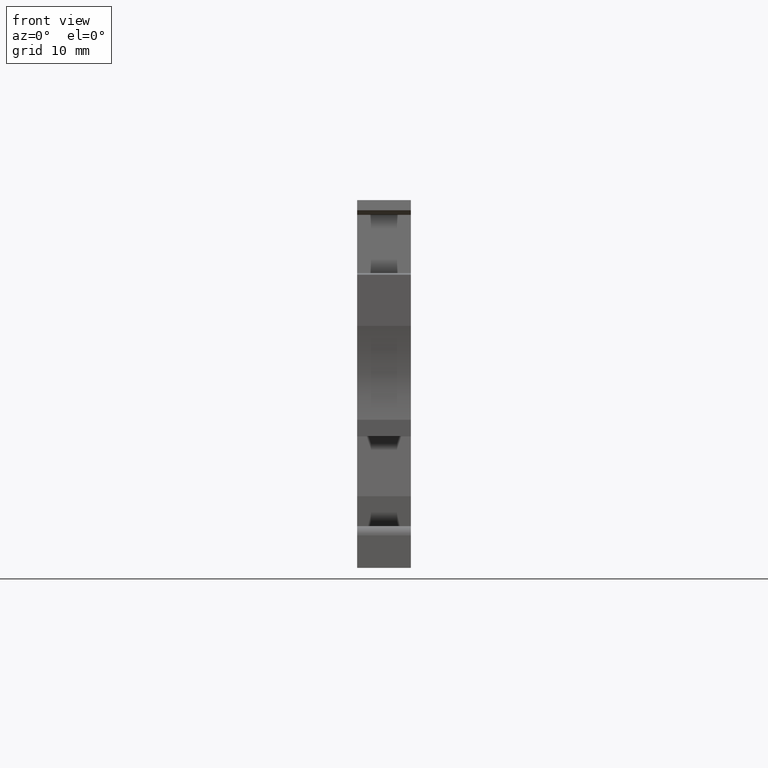
[diagram: clean part render]
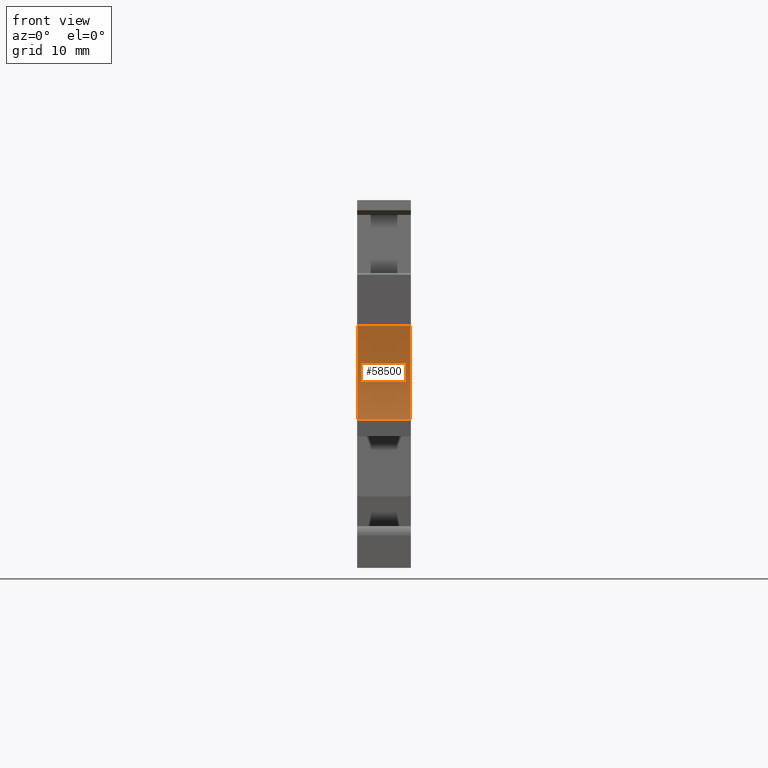
[diagram: same view with one face highlighted and labeled with its STEP entity id]
A machine part, front view. The second image highlights one B-rep face of the part: STEP entity #58500.
In plain terms, the highlighted cylindrical surface (partial cylindrical patch) has radius 15 mm, axis along (1, -0, -0).
Its self-contained STEP definition (entity closure, byte-faithful):
#16660=CARTESIAN_POINT('',(-22.3678327783245,-30.2000000000027,48.52));
#16670=VERTEX_POINT('',#16660);
#16700=CARTESIAN_POINT('',(-22.3678327783245,-30.2000000000027,53.67));
#16710=DIRECTION('',(0.,0.,1.));
#16720=VECTOR('',#16710,1.);
#16730=LINE('',#16700,#16720);
#16740=CARTESIAN_POINT('',(-22.3678327783245,-30.2000000000027,53.67));
#16750=VERTEX_POINT('',#16740);
#16760=EDGE_CURVE('',#16670,#16750,#16730,.T.);
#36120=CARTESIAN_POINT('',(-22.3678327783245,-21.2000000000028,48.52));
#36130=VERTEX_POINT('',#36120);
#36160=CARTESIAN_POINT('',(-36.6769207995787,-25.7000000000028,48.52));
#36170=DIRECTION('',(0.,0.,1.));
#36180=DIRECTION('',(1.,0.,0.));
#36190=AXIS2_PLACEMENT_3D('',#36160,#36170,#36180);
#36200=CIRCLE('',#36190,15.);
#36210=EDGE_CURVE('',#16670,#36130,#36200,.T.);
#52130=CARTESIAN_POINT('',(-36.6769207995787,-25.7000000000028,53.67));
#52140=DIRECTION('',(0.,0.,1.));
#52150=DIRECTION('',(1.,0.,0.));
#52160=AXIS2_PLACEMENT_3D('',#52130,#52140,#52150);
#52170=CIRCLE('',#52160,15.);
#52180=CARTESIAN_POINT('',(-22.3678327783245,-21.2000000000028,53.67));
#52190=VERTEX_POINT('',#52180);
#52200=EDGE_CURVE('',#16750,#52190,#52170,.T.);
#57310=CARTESIAN_POINT('',(-22.3678327783245,-21.2000000000028,53.67));
#57320=DIRECTION('',(0.,0.,1.));
#57330=VECTOR('',#57320,1.);
#57340=LINE('',#57310,#57330);
#57350=EDGE_CURVE('',#36130,#52190,#57340,.T.);
#58390=CARTESIAN_POINT('',(-36.6769207995787,-25.7000000000028,53.67));
#58400=DIRECTION('',(0.,0.,1.));
#58410=DIRECTION('',(1.,0.,0.));
#58420=AXIS2_PLACEMENT_3D('',#58390,#58400,#58410);
#58430=CYLINDRICAL_SURFACE('',#58420,15.);
#58440=ORIENTED_EDGE('',*,*,#36210,.F.);
#58450=ORIENTED_EDGE('',*,*,#57350,.F.);
#58460=ORIENTED_EDGE('',*,*,#52200,.T.);
#58470=ORIENTED_EDGE('',*,*,#16760,.T.);
#58480=EDGE_LOOP('',(#58470,#58460,#58450,#58440));
#58490=FACE_OUTER_BOUND('',#58480,.T.);
#58500=ADVANCED_FACE('',(#58490),#58430,.F.);